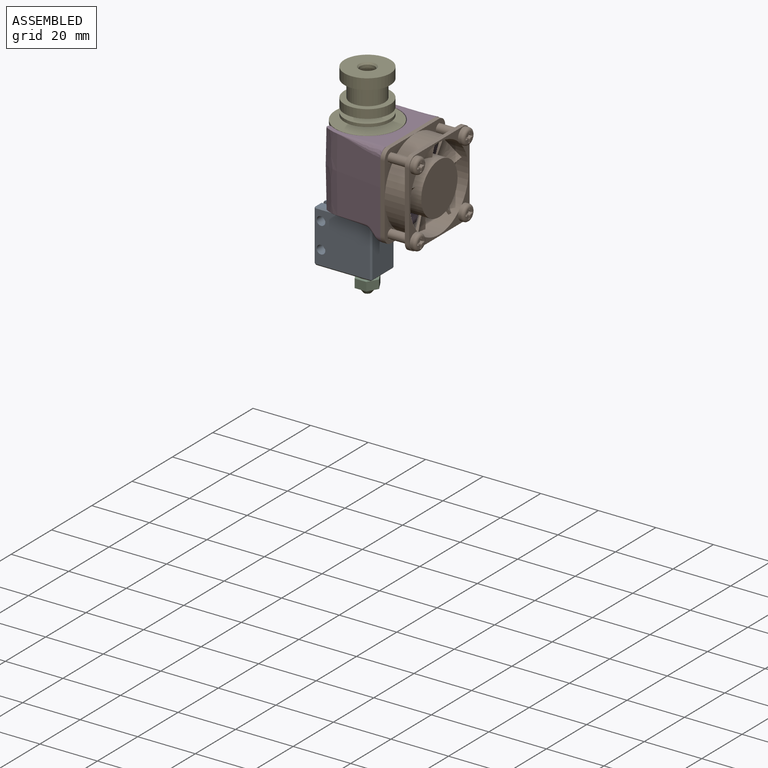
[diagram: assembled view]
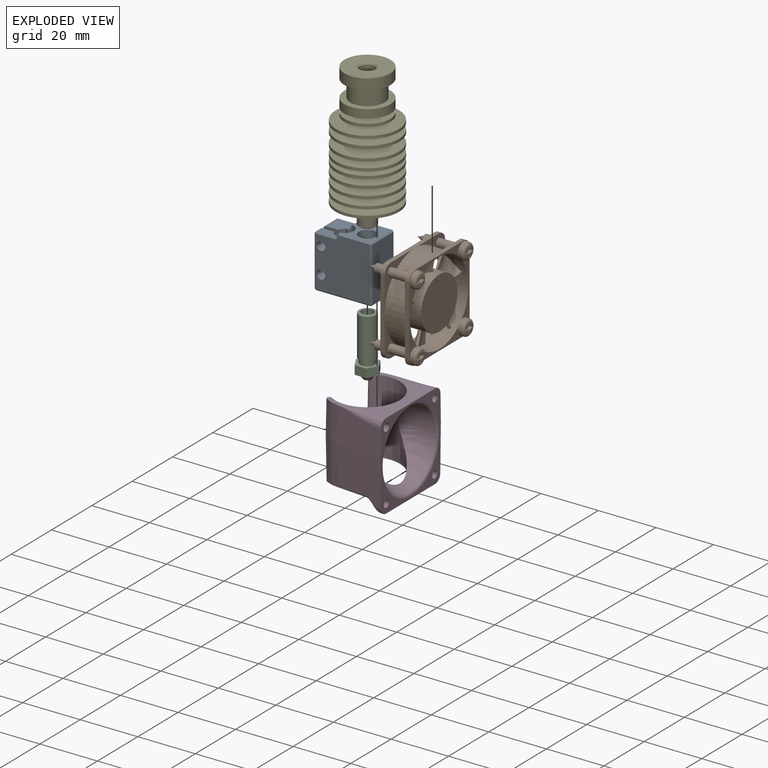
[diagram: exploded view]
GUIDED TOUR — MATED ASSEMBLY (Onshape document bf34e4418287bbaedd079997, AutoMate assembly bf34e4418287bbaedd079997_8dc63caf753efea9ff4d28b3_8edada6e39f5f6edcc6bcfe7_default)

This assembly has 5 components, labeled P0..P4 below (a component is one placed occurrence of a part; the same part can appear more than once), held together by 4 mates. A mate is a constraint between two components; its type names the relative motion it leaves free:
  FASTENED — locks the two components together rigidly (no relative motion).
Axis/direction vectors are unit vectors and 'through' points are millimeter coordinates, both in the assembly's world frame.

MATES
  1. FASTENED "Fastened 2": P2 <-> P4, direction (0.000, 0.000, 1.000) through (-22.17, 0.00, -9.91) mm
  2. FASTENED "Fastened 4": P1 <-> P3, direction (0.000, 0.000, 1.000) through (-7.17, 0.00, 23.32) mm
  3. FASTENED "Fastened 3": P4 <-> P3, direction (0.000, 0.000, 1.000) through (-22.17, 0.00, 23.22) mm
  4. FASTENED "Fastened 1": P0 <-> P4, direction (0.000, 0.000, 1.000) through (-22.17, 0.00, -4.91) mm

ASSEMBLY ORDER
  1. P4 — the base component [order heuristic]
  2. P0 [order heuristic]
  3. P2 [order heuristic]
  4. P3 [order heuristic]
  5. P1 [order heuristic]
Order-tag legend:
  [order heuristic] — this assembly is geometrically interlocked (no collision-free removal order exists), so components are listed in mate-graph order; insertion feasibility is not verified.

Of the 5 components, 3 carry the full construction recipe — the FeatureScript program that regenerates the part's solid from scratch; the rest are supplied as boundary geometry only.
Each toured component is shown spotlighted twice — in the assembled view, then in the exploded view, where a leader line traces a displaced component back to its assembled socket (saturated green if recipe-attached, orange if geometry-only; every other component desaturated gray) — followed by its recipe or geometry summary and the mates that hold it.
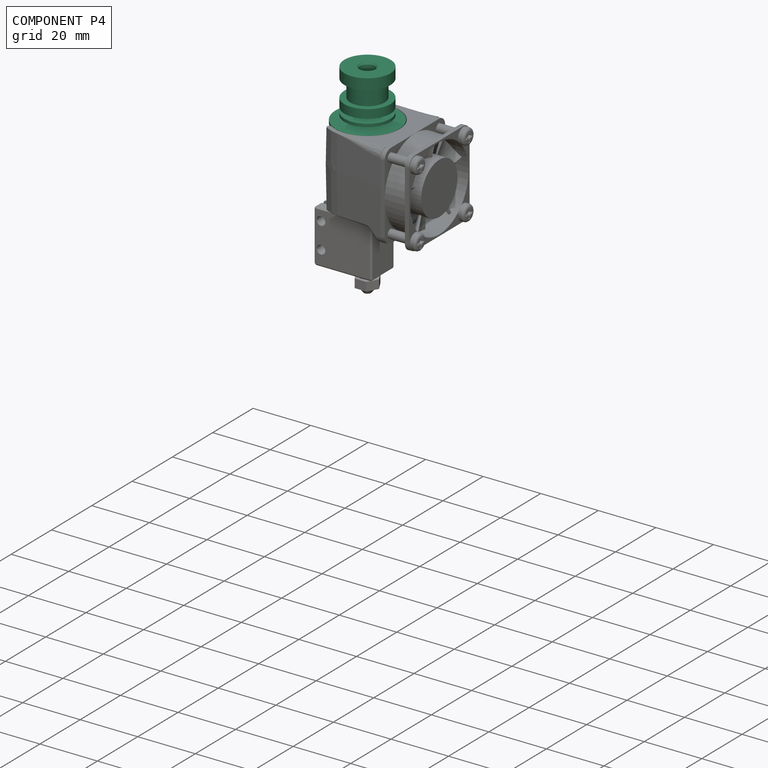
[diagram: component P4 — assembled]
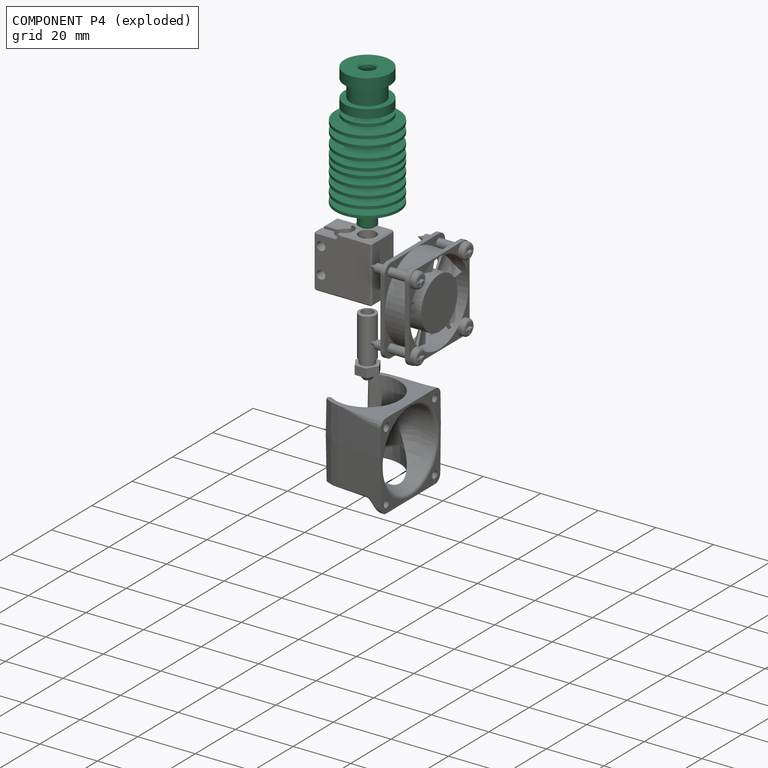
[diagram: component P4 — exploded]
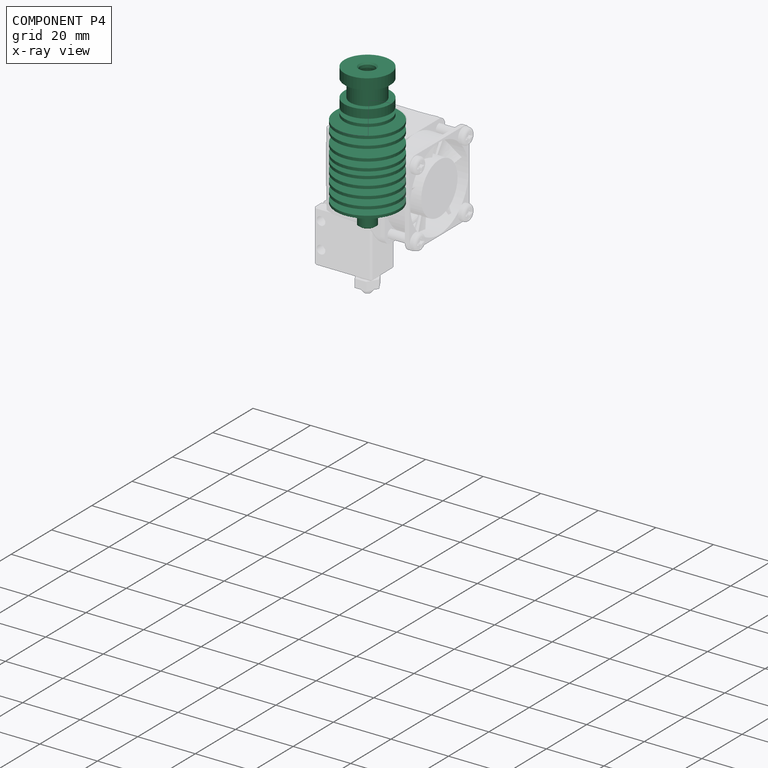
[diagram: component P4 — x-ray view]
COMPONENT P4 — recipe-attached (CADFS 00752190, mesh-verified: the recipe's output STEP matches this component's geometry to below the mesh-comparison resolution (tessellation chordal tolerance ~0.0881 mm)).
Held by: FASTENED mate "Fastened 2" to P2; FASTENED mate "Fastened 3" to P3; FASTENED mate "Fastened 1" to P0.
Construction recipe (FeatureScript — the CAD program that rebuilds this solid; sketch coordinates are in the units given by the * unit suffixes, e.g. mm):

FeatureScript 2656;
import(path : "onshape/std/geometry.fs", version : "2656.0");
import(path : "onshape/std/common.fs", version : "2656.0");
const mm = millimeter;
const VERTEX = EntityType.VERTEX;
const EDGE = EntityType.EDGE;
const FACE = EntityType.FACE;
const BODY = EntityType.BODY;
function v(x, y){return vector(x, y);}
function OD(order){return orderDisambiguation(order);}
function OSD(set){return originalSetDisambiguation(set);}
function TD(topology){return topologyDisambiguation(topology);}
function TDD(query){return trueDependencyDisambiguation(query);}
function sQuery(a, b, c) {return sketchEntityQuery(a, b, c);}

annotation { "Feature Type Name" : "Feature", "Feature Type Description" : "" }
export const myFeature = defineFeature(function(context is Context, id is Id, definition is map)
    precondition{}
    {
        {
            var Q0;
            Q0=qCreatedBy(makeId("Front.planeOp"),FACE);
            var sketch = newSketch(context, id + "F0", { "sketchPlane" : qUnion([Q0])});
            skLineSegment(sketch, "E0", {"start": v(0, 61.45) * mm, "end": v(0, -25.18) * mm, "construction": true});
            skPoint(sketch, "E1", {"position": v(0, 49.8) * mm});
            skPoint(sketch, "E2", {"position": v(0, 7.1) * mm});
            skLineSegment(sketch, "E3", {"start": v(0, 49.8) * mm, "end": v(8, 49.8) * mm});
            skLineSegment(sketch, "E4", {"start": v(8, 49.8) * mm, "end": v(8, 46.1) * mm});
            skLineSegment(sketch, "E5", {"start": v(8, 46.1) * mm, "end": v(6, 46.1) * mm});
            skLineSegment(sketch, "E6", {"start": v(6, 46.1) * mm, "end": v(6, 40.1) * mm});
            skLineSegment(sketch, "E7", {"start": v(6, 40.1) * mm, "end": v(8, 40.1) * mm});
            skLineSegment(sketch, "E8", {"start": v(8, 40.1) * mm, "end": v(8, 37.1) * mm});
            skLineSegment(sketch, "E9", {"start": v(8, 37.1) * mm, "end": v(4.5, 37.1) * mm});
            skLineSegment(sketch, "E10", {"start": v(4.5, 37.1) * mm, "end": v(4.5, 35.52) * mm});
            skLineSegment(sketch, "E11", {"start": v(4.5, 35.52) * mm, "end": v(8, 35.52) * mm});
            skLineSegment(sketch, "E12", {"start": v(8, 35.52) * mm, "end": v(8, 34.52) * mm});
            skLineSegment(sketch, "E13", {"start": v(8, 34.52) * mm, "end": v(4.5, 34.52) * mm});
            skLineSegment(sketch, "E14", {"start": v(4.5, 34.52) * mm, "end": v(4.5, 33.13) * mm});
            skLineSegment(sketch, "E15", {"start": v(4.5, 33.13) * mm, "end": v(11, 33.13) * mm});
            skLineSegment(sketch, "E16", {"start": v(11, 33.13) * mm, "end": v(11, 32.13) * mm});
            skLineSegment(sketch, "E17", {"start": v(11, 32.13) * mm, "end": v(3, 32.13) * mm});
            skLineSegment(sketch, "E18", {"start": v(3, 32.13) * mm, "end": v(3, 30.03) * mm});
            skLineSegment(sketch, "E19", {"start": v(3, 30.03) * mm, "end": v(11, 30.03) * mm});
            skLineSegment(sketch, "E20", {"start": v(11, 30.03) * mm, "end": v(11, 29.03) * mm});
            skLineSegment(sketch, "E21", {"start": v(11, 29.03) * mm, "end": v(3, 29.03) * mm});
            skLineSegment(sketch, "E22", {"start": v(3, 29.03) * mm, "end": v(3, 26.03) * mm});
            skLineSegment(sketch, "E23", {"start": v(3, 26.03) * mm, "end": v(11, 26.03) * mm});
            skLineSegment(sketch, "E24", {"start": v(11, 26.03) * mm, "end": v(11, 25.03) * mm});
            skLineSegment(sketch, "E25", {"start": v(11, 25.03) * mm, "end": v(3, 25.03) * mm});
            skLineSegment(sketch, "E26", {"start": v(3, 25.03) * mm, "end": v(3, 22.93) * mm});
            skLineSegment(sketch, "E27", {"start": v(3, 22.93) * mm, "end": v(11, 22.93) * mm});
            skLineSegment(sketch, "E28", {"start": v(11, 22.93) * mm, "end": v(11, 21.93) * mm});
            skLineSegment(sketch, "E29", {"start": v(11, 21.93) * mm, "end": v(6.5, 21.93) * mm});
            skLineSegment(sketch, "E30", {"start": v(6.5, 21.93) * mm, "end": v(6.5, 20.53) * mm});
            skLineSegment(sketch, "E31", {"start": v(6.5, 20.53) * mm, "end": v(11, 20.53) * mm});
            skLineSegment(sketch, "E32", {"start": v(11, 20.53) * mm, "end": v(11, 19.53) * mm});
            skLineSegment(sketch, "E33", {"start": v(11, 19.53) * mm, "end": v(3, 19.53) * mm});
            skLineSegment(sketch, "E34", {"start": v(3, 19.53) * mm, "end": v(3, 17.43) * mm});
            skLineSegment(sketch, "E35", {"start": v(3, 17.43) * mm, "end": v(11.01, 17.43) * mm});
            skLineSegment(sketch, "E36", {"start": v(11.01, 17.43) * mm, "end": v(11.01, 16.43) * mm});
            skLineSegment(sketch, "E37", {"start": v(11.01, 16.43) * mm, "end": v(3, 16.43) * mm});
            skLineSegment(sketch, "E38", {"start": v(3, 16.43) * mm, "end": v(3, 14.23) * mm});
            skLineSegment(sketch, "E39", {"start": v(3, 14.23) * mm, "end": v(11.01, 14.23) * mm});
            skLineSegment(sketch, "E40", {"start": v(11.01, 14.23) * mm, "end": v(11.01, 13.23) * mm});
            skLineSegment(sketch, "E41", {"start": v(11.01, 13.23) * mm, "end": v(3, 13.23) * mm});
            skLineSegment(sketch, "E42", {"start": v(3, 13.23) * mm, "end": v(3, 11.03) * mm});
            skLineSegment(sketch, "E43", {"start": v(3, 11.03) * mm, "end": v(11.01, 11.03) * mm});
            skLineSegment(sketch, "E44", {"start": v(11.01, 11.03) * mm, "end": v(11.01, 10.03) * mm});
            skLineSegment(sketch, "E45", {"start": v(11.01, 10.03) * mm, "end": v(3, 10.03) * mm});
            skLineSegment(sketch, "E46", {"start": v(3, 10.03) * mm, "end": v(3, 8.03) * mm});
            skLineSegment(sketch, "E47", {"start": v(3, 8.03) * mm, "end": v(11.01, 8.03) * mm});
            skLineSegment(sketch, "E48", {"start": v(11.01, 8.03) * mm, "end": v(11.01, 7.1) * mm});
            skLineSegment(sketch, "E49", {"start": v(2.48, 7.1) * mm, "end": v(11.01, 7.1) * mm});
            skLineSegment(sketch, "E50", {"start": v(0, 49.8) * mm, "end": v(0, 7.1) * mm});
            skPoint(sketch, "E51", {"position": v(2.2, 7.1) * mm});
            skLineSegment(sketch, "E52", {"start": v(2.2, 7.1) * mm, "end": v(2.2, 0) * mm});
            skLineSegment(sketch, "E53", {"start": v(2.2, 7.1) * mm, "end": v(2.2, 39.24) * mm});
            skLineSegment(sketch, "E54", {"start": v(2.2, 39.24) * mm, "end": v(3.69, 41.9) * mm});
            skLineSegment(sketch, "E55", {"start": v(3.69, 41.9) * mm, "end": v(3.69, 45.97) * mm});
            skLineSegment(sketch, "E56", {"start": v(3.69, 45.97) * mm, "end": v(2.56, 48.21) * mm});
            skLineSegment(sketch, "E57", {"start": v(2.56, 48.21) * mm, "end": v(2.56, 49.21) * mm});
            skLineSegment(sketch, "E58", {"start": v(2.56, 49.21) * mm, "end": v(3, 49.8) * mm});
            skLineSegment(sketch, "E59", {"start": v(2.48, 7.1) * mm, "end": v(2.48, 5) * mm});
            skLineSegment(sketch, "E60", {"start": v(2.48, 5) * mm, "end": v(3.05, 4.67) * mm});
            skLineSegment(sketch, "E61", {"start": v(3.05, 4.67) * mm, "end": v(3.05, 0.4) * mm});
            skLineSegment(sketch, "E62", {"start": v(3.05, 0.4) * mm, "end": v(2.48, 0) * mm});
            skLineSegment(sketch, "E63", {"start": v(2.48, 0) * mm, "end": v(2.2, 0) * mm});
            skPoint(sketch, "E64", {"position": v(0, 0) * mm});
            skSolve(sketch);
        }
        {
            var Q0;
            {var subQ1=sQuery(id+"F0.wireOp",EDGE,"E4");Q0=makeQuery(id+"F0.imprint","IMPRINT",FACE,{"disambiguationData":[TD([[makeQuery(id+"F0.imprint","IMPRINT",EDGE,{"derivedFrom":subQ1}),-1.0]])]});}
            var Q1;
            Q1=sQuery(id+"F0.wireOp",EDGE,"E0");
            revolve(context, id + "F1", {"surfaceOperationType" : NewSurfaceOperationType.NEW, "entities" : qUnion([Q0]), "axis" : qUnion([Q1]), "revolveType" : RevolveType.FULL});
        }
    });
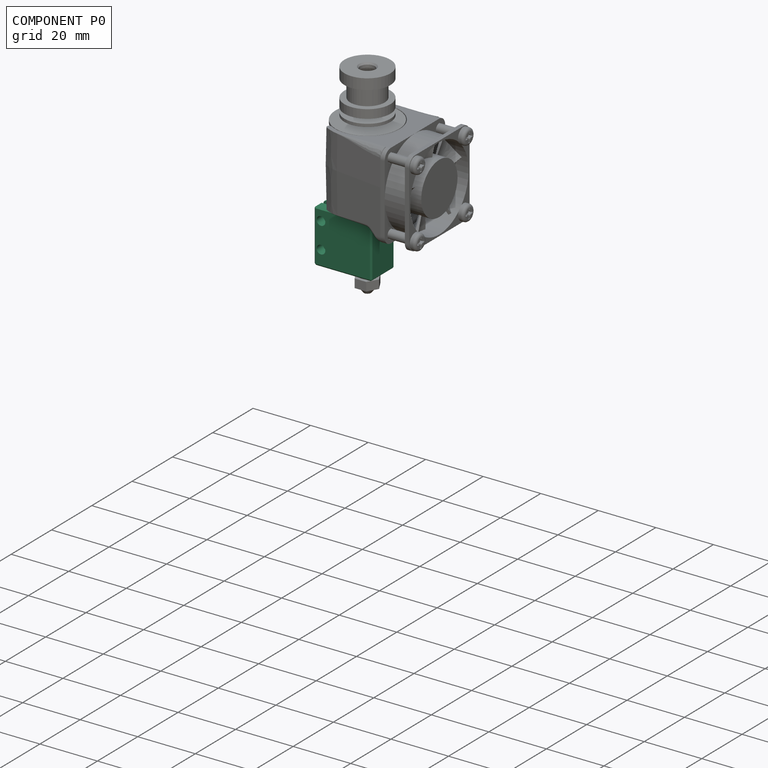
[diagram: component P0 — assembled]
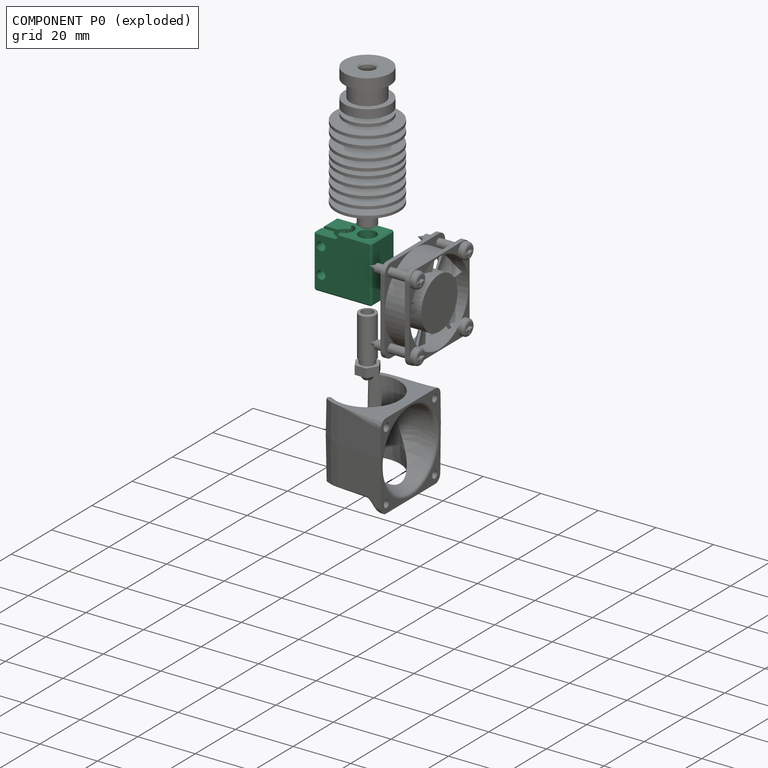
[diagram: component P0 — exploded]
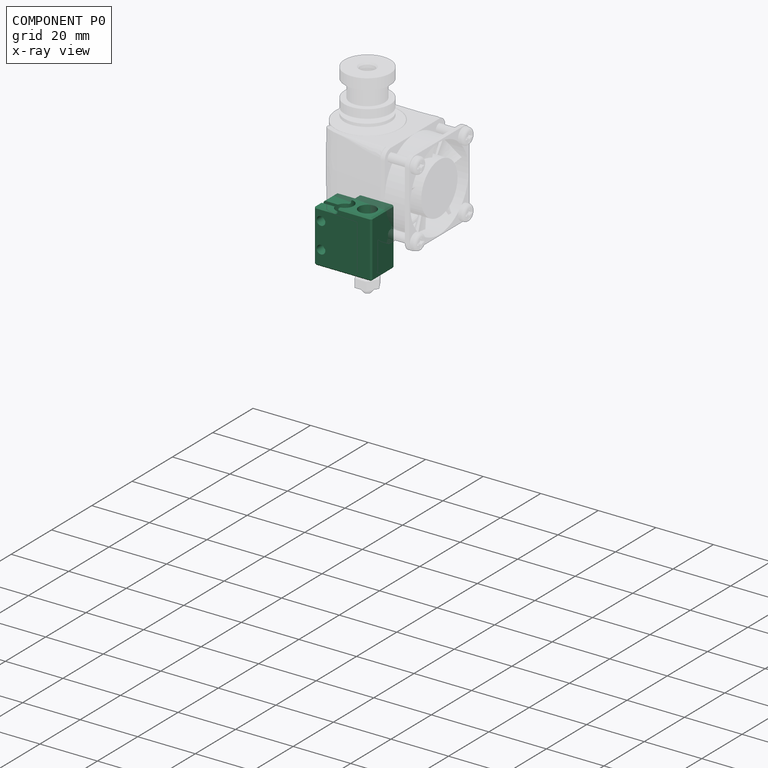
[diagram: component P0 — x-ray view]
COMPONENT P0 — recipe-attached (CADFS 00752191, mesh-verified: the recipe's output STEP matches this component's geometry to below the mesh-comparison resolution (tessellation chordal tolerance ~0.0458 mm)).
Held by: FASTENED mate "Fastened 1" to P4.
Construction recipe (FeatureScript — the CAD program that rebuilds this solid; sketch coordinates are in the units given by the * unit suffixes, e.g. mm):

FeatureScript 2656;
import(path : "onshape/std/geometry.fs", version : "2656.0");
import(path : "onshape/std/common.fs", version : "2656.0");
const mm = millimeter;
const VERTEX = EntityType.VERTEX;
const EDGE = EntityType.EDGE;
const FACE = EntityType.FACE;
const BODY = EntityType.BODY;
function v(x, y){return vector(x, y);}
function OD(order){return orderDisambiguation(order);}
function OSD(set){return originalSetDisambiguation(set);}
function TD(topology){return topologyDisambiguation(topology);}
function TDD(query){return trueDependencyDisambiguation(query);}
function sQuery(a, b, c) {return sketchEntityQuery(a, b, c);}

annotation { "Feature Type Name" : "Feature", "Feature Type Description" : "" }
export const myFeature = defineFeature(function(context is Context, id is Id, definition is map)
    precondition{}
    {
        {
            var Q0;
            Q0=qCreatedBy(makeId("Front.planeOp"),FACE);
            var sketch = newSketch(context, id + "F0", { "sketchPlane" : qUnion([Q0])});
            skLineSegment(sketch, "E0.bottom", {"start": v(4.5, -20) * mm, "end": v(-6.8, -20) * mm});
            skLineSegment(sketch, "E0.top", {"start": v(4.5, 0) * mm, "end": v(-15.5, 0) * mm});
            skLineSegment(sketch, "E0.left", {"start": v(4.5, -20) * mm, "end": v(4.5, 0) * mm});
            skLineSegment(sketch, "E0.right", {"start": v(-15.5, -18.5) * mm, "end": v(-15.5, 0) * mm});
            skLineSegment(sketch, "E1", {"start": v(-15.5, -18.5) * mm, "end": v(-8.3, -18.5) * mm});
            skLineSegment(sketch, "E2", {"start": v(-7.5, 0.7) * mm, "end": v(-7.5, 0.7) * mm});
            skPoint(sketch, "E3", {"position": v(-13, -14.5) * mm});
            skPoint(sketch, "E4", {"position": v(-13, -5.5) * mm});
            skPoint(sketch, "E5", {"position": v(-4, -4.5) * mm});
            skPoint(sketch, "E6", {"position": v(-4, -8) * mm});
            skPoint(sketch, "E7.visualSharp", {"position": v(-7.5, -18.5) * mm});
            skArc(sketch, "E7.filletArc", {"start": v(-7.5, -19.3) * mm, "mid": v(-7.73, -18.73) * mm, "end": v(-8.3, -18.5) * mm});
            skLineSegment(sketch, "E8", {"start": v(0, -47.98) * mm, "end": v(0, 21.9) * mm, "construction": true});
            skPoint(sketch, "E9", {"position": v(0, -20) * mm});
            skCircle(sketch, "E10", {"center": v(-4, -8) * mm, "radius": 1.2 * mm});
            skCircle(sketch, "E11", {"center": v(-4, -8) * mm, "radius": 1.5 * mm});
            skCircle(sketch, "E12", {"center": v(-4, -4.5) * mm, "radius": 1 * mm});
            skPoint(sketch, "E13.visualSharp", {"position": v(-7.5, -20) * mm});
            skArc(sketch, "E13.filletArc", {"start": v(-7.5, -19.3) * mm, "mid": v(-7.3, -19.8) * mm, "end": v(-6.8, -20) * mm});
            skCircle(sketch, "E14", {"center": v(-13, -5.5) * mm, "radius": 1.2 * mm});
            skCircle(sketch, "E15", {"center": v(-13, -5.5) * mm, "radius": 1.5 * mm});
            skCircle(sketch, "E16", {"center": v(-13, -14.5) * mm, "radius": 1.2 * mm});
            skCircle(sketch, "E17", {"center": v(-13, -14.5) * mm, "radius": 1.5 * mm});
            skPoint(sketch, "E18", {"position": v(0, 0) * mm});
            skPoint(sketch, "E19", {"position": v(159.93, -108.2) * mm});
            skSolve(sketch);
        }
        {
            var Q0;
            Q0=makeQuery(id+"F0.imprint","IMPRINT",FACE,{"disambiguationData":[TD([[makeQuery(id+"F0.imprint","IMPRINT",EDGE,{"derivedFrom":sQuery(id+"F0.wireOp",EDGE,"E0.bottom")}),-1.0]])]});
            var Q1;
            Q1=makeQuery(id+"F0.imprint","IMPRINT",FACE,{"disambiguationData":[TD([[makeQuery(id+"F0.imprint","IMPRINT",EDGE,{"derivedFrom":sQuery(id+"F0.wireOp",EDGE,"E10")}),1.0]])]});
            var Q2;
            Q2=makeQuery(id+"F0.imprint","IMPRINT",FACE,{"disambiguationData":[TD([[makeQuery(id+"F0.imprint","IMPRINT",EDGE,{"derivedFrom":sQuery(id+"F0.wireOp",EDGE,"E10")}),-1.0]])]});
            var Q3;
            Q3=makeQuery(id+"F0.imprint","IMPRINT",FACE,{"disambiguationData":[TD([[makeQuery(id+"F0.imprint","IMPRINT",EDGE,{"derivedFrom":sQuery(id+"F0.wireOp",EDGE,"E12")}),1.0]])]});
            var Q4;
            Q4=makeQuery(id+"F0.imprint","IMPRINT",FACE,{"disambiguationData":[TD([[makeQuery(id+"F0.imprint","IMPRINT",EDGE,{"derivedFrom":sQuery(id+"F0.wireOp",EDGE,"E14")}),-1.0]])]});
            var Q5;
            Q5=makeQuery(id+"F0.imprint","IMPRINT",FACE,{"disambiguationData":[TD([[makeQuery(id+"F0.imprint","IMPRINT",EDGE,{"derivedFrom":sQuery(id+"F0.wireOp",EDGE,"E14")}),1.0]])]});
            var Q6;
            Q6=makeQuery(id+"F0.imprint","IMPRINT",FACE,{"disambiguationData":[TD([[makeQuery(id+"F0.imprint","IMPRINT",EDGE,{"derivedFrom":sQuery(id+"F0.wireOp",EDGE,"E16")}),-1.0]])]});
            var Q7;
            Q7=makeQuery(id+"F0.imprint","IMPRINT",FACE,{"disambiguationData":[TD([[makeQuery(id+"F0.imprint","IMPRINT",EDGE,{"derivedFrom":sQuery(id+"F0.wireOp",EDGE,"E16")}),1.0]])]});
            extrude(context, id + "F1", {"entities" : qUnion([Q0, Q1, Q2, Q3, Q4, Q5, Q6, Q7]), "depth" : 11.5 * mm, "offsetDistance" : 25 * mm});
        }
        {
            var Q0;
            Q0=qCreatedBy(makeId("Top.planeOp"),FACE);
            var sketch = newSketch(context, id + "F2", { "sketchPlane" : qUnion([Q0])});
            skLineSegment(sketch, "E20.bottom", {"start": v(-15.5, 0) * mm, "end": v(4.5, 0) * mm});
            skLineSegment(sketch, "E20.top", {"start": v(-15.5, -11.5) * mm, "end": v(4.5, -11.5) * mm});
            skLineSegment(sketch, "E20.left", {"start": v(-15.5, 0) * mm, "end": v(-15.5, -6.7) * mm});
            skLineSegment(sketch, "E20.right", {"start": v(4.5, 0) * mm, "end": v(4.5, -11.5) * mm});
            skLineSegment(sketch, "E21.0", {"start": v(-15.5, 4.8) * mm, "end": v(-15.5, -11.5) * mm, "construction": true});
            skLineSegment(sketch, "E22.0", {"start": v(4.5, 0) * mm, "end": v(-15.5, 0) * mm, "construction": true});
            skLineSegment(sketch, "E23.0", {"start": v(4.5, 0) * mm, "end": v(4.5, -11.5) * mm, "construction": true});
            skLineSegment(sketch, "E24.0", {"start": v(-15.5, -11.5) * mm, "end": v(4.5, -11.5) * mm, "construction": true});
            skPoint(sketch, "E25", {"position": v(-15.5, -11.5) * mm});
            skPoint(sketch, "E26", {"position": v(-7.5, -7.5) * mm});
            skPoint(sketch, "E27", {"position": v(0, -7) * mm});
            skPoint(sketch, "E28", {"position": v(-15.5, -8.3) * mm});
            skPoint(sketch, "E29", {"position": v(-15.5, -6.7) * mm});
            skArc(sketch, "E30", {"start": v(-10.44, -8.3) * mm, "mid": v(-4.45, -7.5) * mm, "end": v(-10.44, -6.7) * mm});
            skCircle(sketch, "E31", {"center": v(0, -7) * mm, "radius": 2.4 * mm});
            skCircle(sketch, "E32", {"center": v(0, -7) * mm, "radius": 3 * mm});
            skLineSegment(sketch, "E33", {"start": v(-15.5, -6.7) * mm, "end": v(-10.44, -6.7) * mm});
            skLineSegment(sketch, "E34", {"start": v(-15.5, -8.3) * mm, "end": v(-10.44, -8.3) * mm});
            skLineSegment(sketch, "E35.trimOffspring", {"start": v(-15.5, -8.3) * mm, "end": v(-15.5, -11.5) * mm, "construction": true});
            skLineSegment(sketch, "E36.trimOffspring", {"start": v(-15.5, -8.3) * mm, "end": v(-15.5, -11.5) * mm});
            skLineSegment(sketch, "E37", {"start": v(-15.5, -8.3) * mm, "end": v(-15.5, -6.7) * mm});
            skSolve(sketch);
        }
        {
            var Q0;
            Q0=makeQuery(id+"F2.imprint","IMPRINT",FACE,{"disambiguationData":[TD([[makeQuery(id+"F2.imprint","IMPRINT",EDGE,{"derivedFrom":sQuery(id+"F2.wireOp",EDGE,"E30")}),1.0]])]});
            var Q1;
            Q1=makeQuery(id+"F2.imprint","IMPRINT",FACE,{"disambiguationData":[TD([[makeQuery(id+"F2.imprint","IMPRINT",EDGE,{"derivedFrom":sQuery(id+"F2.wireOp",EDGE,"E31")}),1.0]])]});
            var Q2;
            Q2=makeQuery(id+"F2.imprint","IMPRINT",FACE,{"disambiguationData":[TD([[makeQuery(id+"F2.imprint","IMPRINT",EDGE,{"derivedFrom":sQuery(id+"F2.wireOp",EDGE,"E31")}),-1.0]])]});
            extrude(context, id + "F3", {"entities" : qUnion([Q0, Q1, Q2]), "operationType" : NewBodyOperationType.REMOVE, "oppositeDirection" : true, "depth" : 25 * mm, "offsetDistance" : 25 * mm});
        }
        {
            var Q0;
            Q0=makeQuery(id+"F0.imprint","IMPRINT",FACE,{"disambiguationData":[TD([[makeQuery(id+"F0.imprint","IMPRINT",EDGE,{"derivedFrom":sQuery(id+"F0.wireOp",EDGE,"E14")}),1.0]])]});
            var Q1;
            Q1=makeQuery(id+"F0.imprint","IMPRINT",FACE,{"disambiguationData":[TD([[makeQuery(id+"F0.imprint","IMPRINT",EDGE,{"derivedFrom":sQuery(id+"F0.wireOp",EDGE,"E16")}),1.0]])]});
            var Q2;
            Q2=makeQuery(id+"F0.imprint","IMPRINT",FACE,{"disambiguationData":[TD([[makeQuery(id+"F0.imprint","IMPRINT",EDGE,{"derivedFrom":sQuery(id+"F0.wireOp",EDGE,"E14")}),-1.0]])]});
            var Q3;
            Q3=makeQuery(id+"F0.imprint","IMPRINT",FACE,{"disambiguationData":[TD([[makeQuery(id+"F0.imprint","IMPRINT",EDGE,{"derivedFrom":sQuery(id+"F0.wireOp",EDGE,"E16")}),-1.0]])]});
            extrude(context, id + "F4", {"entities" : qUnion([Q0, Q1, Q2, Q3]), "operationType" : NewBodyOperationType.REMOVE, "depth" : 25 * mm, "offsetDistance" : 25 * mm});
        }
        {
            var Q0;
            Q0=makeQuery(id+"F0.imprint","IMPRINT",FACE,{"disambiguationData":[TD([[makeQuery(id+"F0.imprint","IMPRINT",EDGE,{"derivedFrom":sQuery(id+"F0.wireOp",EDGE,"E10")}),-1.0]])]});
            var Q1;
            Q1=makeQuery(id+"F0.imprint","IMPRINT",FACE,{"disambiguationData":[TD([[makeQuery(id+"F0.imprint","IMPRINT",EDGE,{"derivedFrom":sQuery(id+"F0.wireOp",EDGE,"E10")}),1.0]])]});
            extrude(context, id + "F5", {"entities" : qUnion([Q0, Q1]), "operationType" : NewBodyOperationType.REMOVE, "depth" : 3.5 * mm, "offsetDistance" : 25 * mm});
        }
        {
            var Q0;
            Q0=makeQuery(id+"F0.imprint","IMPRINT",FACE,{"disambiguationData":[TD([[makeQuery(id+"F0.imprint","IMPRINT",EDGE,{"derivedFrom":sQuery(id+"F0.wireOp",EDGE,"E12")}),1.0]])]});
            extrude(context, id + "F6", {"entities" : qUnion([Q0]), "operationType" : NewBodyOperationType.REMOVE, "depth" : 2 * mm, "offsetDistance" : 25 * mm});
        }
        {
            var Q0;
            Q0=makeQuery(id+"F1.opExtrude","SWEPT_EDGE",EDGE,{"disambiguationData":[OSD([sQuery(id+"F0.wireOp",EDGE,"E0.top"),sQuery(id+"F0.wireOp",EDGE,"E0.left")])]});
            var Q1;
            Q1=makeQuery(id+"F1.opExtrude","CAP_EDGE",EDGE,{"disambiguationData":[OSD([sQuery(id+"F0.wireOp",EDGE,"E0.top")])],"isStart":false});
            var Q2;
            {var subQ0=sQuery(id+"F0.wireOp",EDGE,"E0.right");var subQ1=sQuery(id+"F0.wireOp",EDGE,"E0.top");Q2=makeQuery(id+"F3.boolean.opBoolean","SPLIT",EDGE,{"disambiguationData":[TD([makeQuery(id+"F3.opExtrude","SWEPT_FACE",FACE,{"disambiguationData":[OSD([sQuery(id+"F2.wireOp",EDGE,"E34")])]})])],"derivedFrom":makeQuery(id+"F1.opExtrude","SWEPT_EDGE",EDGE,{"disambiguationData":[OSD([subQ1,subQ0])]})});}
            var Q3;
            {var subQ0=sQuery(id+"F0.wireOp",EDGE,"E0.right");var subQ1=sQuery(id+"F0.wireOp",EDGE,"E0.top");Q3=makeQuery(id+"F3.boolean.opBoolean","SPLIT",EDGE,{"disambiguationData":[TD([makeQuery(id+"F3.opExtrude","SWEPT_FACE",FACE,{"disambiguationData":[OSD([sQuery(id+"F2.wireOp",EDGE,"E33")])]})])],"derivedFrom":makeQuery(id+"F1.opExtrude","SWEPT_EDGE",EDGE,{"disambiguationData":[OSD([subQ1,subQ0])]})});}
            var Q4;
            Q4=makeQuery(id+"F1.opExtrude","CAP_EDGE",EDGE,{"disambiguationData":[OSD([sQuery(id+"F0.wireOp",EDGE,"E0.top")])],"isStart":true});
            var Q5;
            Q5=makeQuery(id+"F1.opExtrude","CAP_EDGE",EDGE,{"disambiguationData":[OSD([sQuery(id+"F0.wireOp",EDGE,"E0.left")])],"isStart":false});
            var Q6;
            Q6=makeQuery(id+"F1.opExtrude","CAP_EDGE",EDGE,{"disambiguationData":[OSD([sQuery(id+"F0.wireOp",EDGE,"E0.right")])],"isStart":false});
            var Q7;
            Q7=makeQuery(id+"F1.opExtrude","CAP_EDGE",EDGE,{"disambiguationData":[OSD([sQuery(id+"F0.wireOp",EDGE,"E1")])],"isStart":false});
            var Q8;
            Q8=makeQuery(id+"F1.opExtrude","CAP_EDGE",EDGE,{"disambiguationData":[OSD([sQuery(id+"F0.wireOp",EDGE,"E7.filletArc")])],"isStart":false});
            var Q9;
            Q9=makeQuery(id+"F1.opExtrude","CAP_EDGE",EDGE,{"disambiguationData":[OSD([sQuery(id+"F0.wireOp",EDGE,"E13.filletArc")])],"isStart":false});
            var Q10;
            Q10=makeQuery(id+"F1.opExtrude","CAP_EDGE",EDGE,{"disambiguationData":[OSD([sQuery(id+"F0.wireOp",EDGE,"E0.bottom")])],"isStart":false});
            var Q11;
            Q11=makeQuery(id+"F1.opExtrude","SWEPT_EDGE",EDGE,{"disambiguationData":[OSD([sQuery(id+"F0.wireOp",EDGE,"E0.bottom"),sQuery(id+"F0.wireOp",EDGE,"E0.left")])]});
            var Q12;
            {var subQ0=sQuery(id+"F0.wireOp",EDGE,"E1");var subQ1=sQuery(id+"F0.wireOp",EDGE,"E0.right");Q12=makeQuery(id+"F3.boolean.opBoolean","SPLIT",EDGE,{"disambiguationData":[TD([makeQuery(id+"F3.opExtrude","SWEPT_FACE",FACE,{"disambiguationData":[OSD([sQuery(id+"F2.wireOp",EDGE,"E34")])]})])],"derivedFrom":makeQuery(id+"F1.opExtrude","SWEPT_EDGE",EDGE,{"disambiguationData":[OSD([subQ1,subQ0])]})});}
            var Q13;
            {var subQ0=sQuery(id+"F0.wireOp",EDGE,"E1");var subQ1=sQuery(id+"F0.wireOp",EDGE,"E0.right");Q13=makeQuery(id+"F3.boolean.opBoolean","SPLIT",EDGE,{"disambiguationData":[TD([makeQuery(id+"F3.opExtrude","SWEPT_FACE",FACE,{"disambiguationData":[OSD([sQuery(id+"F2.wireOp",EDGE,"E33")])]})])],"derivedFrom":makeQuery(id+"F1.opExtrude","SWEPT_EDGE",EDGE,{"disambiguationData":[OSD([subQ1,subQ0])]})});}
            var Q14;
            Q14=makeQuery(id+"F1.opExtrude","CAP_EDGE",EDGE,{"disambiguationData":[OSD([sQuery(id+"F0.wireOp",EDGE,"E0.left")])],"isStart":true});
            var Q15;
            Q15=makeQuery(id+"F1.opExtrude","CAP_EDGE",EDGE,{"disambiguationData":[OSD([sQuery(id+"F0.wireOp",EDGE,"E0.bottom")])],"isStart":true});
            var Q16;
            Q16=makeQuery(id+"F1.opExtrude","CAP_EDGE",EDGE,{"disambiguationData":[OSD([sQuery(id+"F0.wireOp",EDGE,"E13.filletArc")])],"isStart":true});
            var Q17;
            Q17=makeQuery(id+"F1.opExtrude","CAP_EDGE",EDGE,{"disambiguationData":[OSD([sQuery(id+"F0.wireOp",EDGE,"E7.filletArc")])],"isStart":true});
            var Q18;
            Q18=makeQuery(id+"F1.opExtrude","CAP_EDGE",EDGE,{"disambiguationData":[OSD([sQuery(id+"F0.wireOp",EDGE,"E1")])],"isStart":true});
            var Q19;
            Q19=makeQuery(id+"F1.opExtrude","CAP_EDGE",EDGE,{"disambiguationData":[OSD([sQuery(id+"F0.wireOp",EDGE,"E0.right")])],"isStart":true});
            chamfer(context, id + "F7", {"entities" : qUnion([Q0, Q1, Q2, Q3, Q4, Q5, Q6, Q7, Q8, Q9, Q10, Q11, Q12, Q13, Q14, Q15, Q16, Q17, Q18, Q19]), "width" : 0.5 * mm, "tangentPropagation" : true});
        }
        {
            var Q0;
            Q0=makeQuery(id+"F1.opExtrude","SWEPT_BODY",BODY,{"disambiguationData":[OSD([sQuery(id+"F0.wireOp",EDGE,"E0.bottom"),sQuery(id+"F0.wireOp",EDGE,"E0.top"),sQuery(id+"F0.wireOp",EDGE,"E0.left"),sQuery(id+"F0.wireOp",EDGE,"E0.right"),sQuery(id+"F0.wireOp",EDGE,"E1"),sQuery(id+"F0.wireOp",EDGE,"E7.filletArc"),sQuery(id+"F0.wireOp",EDGE,"E13.filletArc")])]});
            var Q1;
            Q1=qCreatedBy(makeId("Front.planeOp"),FACE);
            mirror(context, id + "F8", {"entities" : qUnion([Q0]), "mirrorPlane" : qUnion([Q1])});
        }
        {
            var Q0;
            Q0=makeQuery(id+"F1.opExtrude","SWEPT_BODY",BODY,{"disambiguationData":[OSD([sQuery(id+"F0.wireOp",EDGE,"E0.bottom"),sQuery(id+"F0.wireOp",EDGE,"E0.top"),sQuery(id+"F0.wireOp",EDGE,"E0.left"),sQuery(id+"F0.wireOp",EDGE,"E0.right"),sQuery(id+"F0.wireOp",EDGE,"E1"),sQuery(id+"F0.wireOp",EDGE,"E7.filletArc"),sQuery(id+"F0.wireOp",EDGE,"E13.filletArc")])]});
            deleteBodies(context, id + "F9", {"entities" : qUnion([Q0])});
        }
        {
            var Q0;
            Q0=makeQuery(id+"F8.opPattern","COPY",BODY,{"derivedFrom":makeQuery(id+"F1.opExtrude","SWEPT_BODY",BODY,{"disambiguationData":[OSD([sQuery(id+"F0.wireOp",EDGE,"E0.bottom"),sQuery(id+"F0.wireOp",EDGE,"E0.top"),sQuery(id+"F0.wireOp",EDGE,"E0.left"),sQuery(id+"F0.wireOp",EDGE,"E0.right"),sQuery(id+"F0.wireOp",EDGE,"E1"),sQuery(id+"F0.wireOp",EDGE,"E7.filletArc"),sQuery(id+"F0.wireOp",EDGE,"E13.filletArc")])]}),"instanceName":"1"});
            var Q1;
            {var subQ0=sQuery(id+"F0.wireOp",EDGE,"E0.top");Q1=makeQuery(id+"F8.opPattern","COPY",EDGE,{"derivedFrom":makeQuery(id+"F7.opChamfer","BLEND_EDGE",EDGE,{"blendedFrom":[makeQuery(id+"F1.opExtrude","CAP_EDGE",EDGE,{"disambiguationData":[OSD([subQ0])],"isStart":true}),makeQuery(id+"F1.opExtrude","CAP_FACE",FACE,{"disambiguationData":[OSD([sQuery(id+"F0.wireOp",EDGE,"E0.bottom"),subQ0,sQuery(id+"F0.wireOp",EDGE,"E0.left"),sQuery(id+"F0.wireOp",EDGE,"E0.right"),sQuery(id+"F0.wireOp",EDGE,"E1"),sQuery(id+"F0.wireOp",EDGE,"E7.filletArc"),sQuery(id+"F0.wireOp",EDGE,"E13.filletArc")])],"isStart":true})],"blendedInto":[makeQuery(id+"F1.opExtrude","CAP_FACE",FACE,{"disambiguationData":[OSD([sQuery(id+"F0.wireOp",EDGE,"E0.bottom"),subQ0,sQuery(id+"F0.wireOp",EDGE,"E0.left"),sQuery(id+"F0.wireOp",EDGE,"E0.right"),sQuery(id+"F0.wireOp",EDGE,"E1"),sQuery(id+"F0.wireOp",EDGE,"E7.filletArc"),sQuery(id+"F0.wireOp",EDGE,"E13.filletArc")])],"isStart":true})]}),"instanceName":"1"});}
            transform(context, id + "F10", {"entities" : qUnion([Q0]), "transformType" : TransformType.ROTATION, "transformAxis" : qUnion([Q1]), "angle" : 180 * degree, "makeCopy" : false});
        }
    });
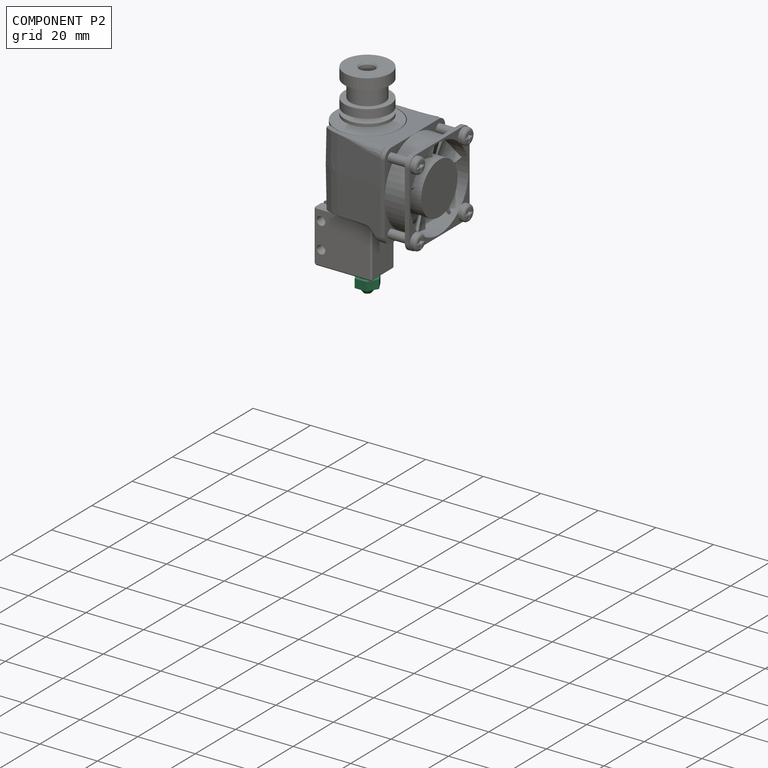
[diagram: component P2 — assembled]
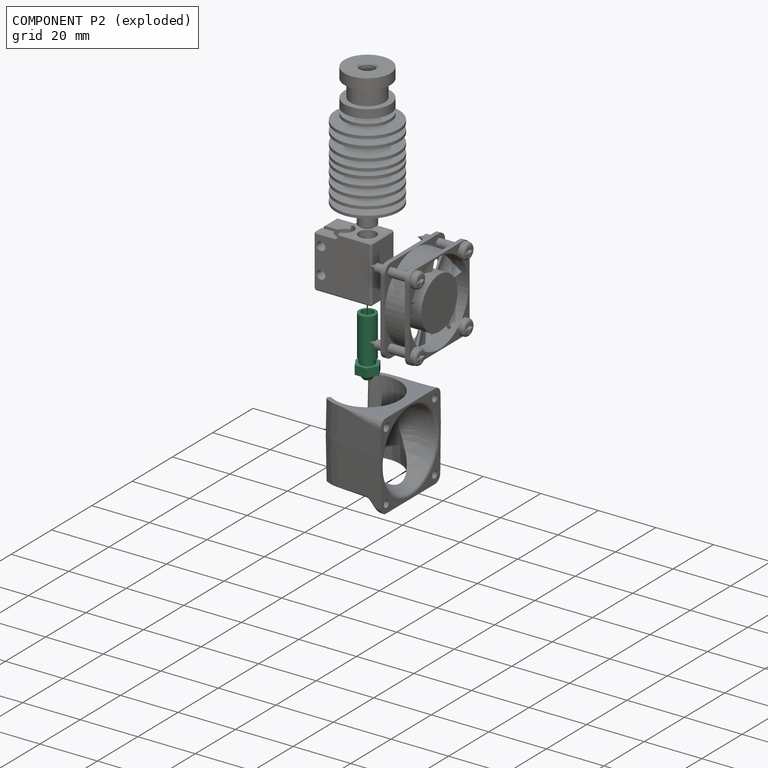
[diagram: component P2 — exploded]
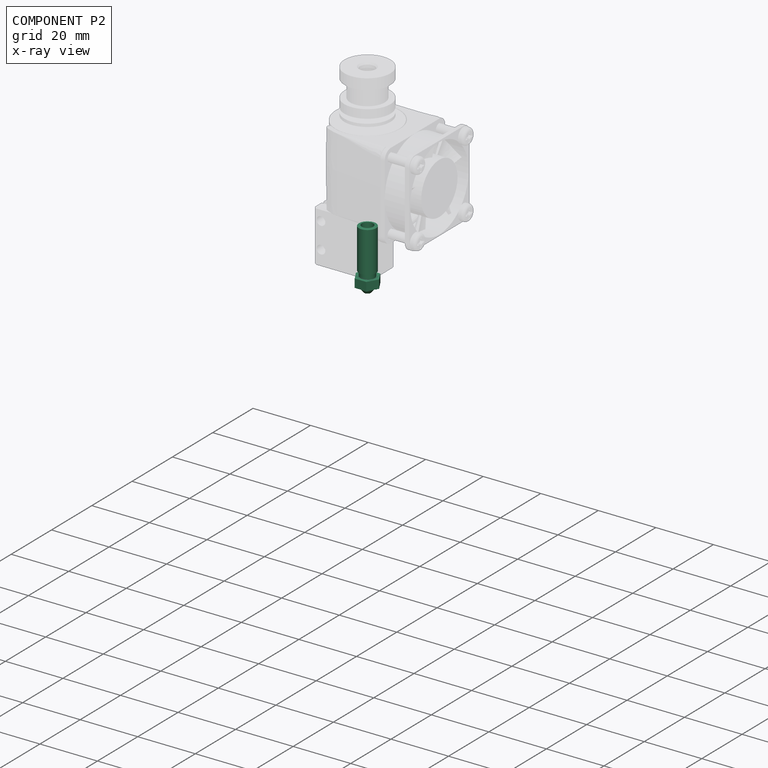
[diagram: component P2 — x-ray view]
COMPONENT P2 — recipe-attached (CADFS 00752193, mesh-verified: the recipe's output STEP matches this component's geometry to below the mesh-comparison resolution (tessellation chordal tolerance ~0.0353 mm)).
Held by: FASTENED mate "Fastened 2" to P4.
Construction recipe (FeatureScript — the CAD program that rebuilds this solid; sketch coordinates are in the units given by the * unit suffixes, e.g. mm):

FeatureScript 2656;
import(path : "onshape/std/geometry.fs", version : "2656.0");
import(path : "onshape/std/common.fs", version : "2656.0");
const mm = millimeter;
const VERTEX = EntityType.VERTEX;
const EDGE = EntityType.EDGE;
const FACE = EntityType.FACE;
const BODY = EntityType.BODY;
function v(x, y){return vector(x, y);}
function OD(order){return orderDisambiguation(order);}
function OSD(set){return originalSetDisambiguation(set);}
function TD(topology){return topologyDisambiguation(topology);}
function TDD(query){return trueDependencyDisambiguation(query);}
function sQuery(a, b, c) {return sketchEntityQuery(a, b, c);}

annotation { "Feature Type Name" : "Feature", "Feature Type Description" : "" }
export const myFeature = defineFeature(function(context is Context, id is Id, definition is map)
    precondition{}
    {
        {
            var Q0;
            Q0=qCreatedBy(makeId("Front.planeOp"),FACE);
            var sketch = newSketch(context, id + "F0", { "sketchPlane" : qUnion([Q0])});
            skCircle(sketch, "E0.cCircle", {"center": v(-22.17, -14.6) * mm, "radius": 3.5 * mm, "construction": true});
            skLineSegment(sketch, "E0.0", {"start": v(-24.2, -11.1) * mm, "end": v(-20.15, -11.1) * mm});
            skLineSegment(sketch, "E0.1", {"start": v(-20.15, -11.1) * mm, "end": v(-18.13, -14.6) * mm});
            skLineSegment(sketch, "E0.2", {"start": v(-18.13, -14.6) * mm, "end": v(-20.15, -18.1) * mm});
            skLineSegment(sketch, "E0.3", {"start": v(-20.15, -18.1) * mm, "end": v(-24.2, -18.1) * mm});
            skLineSegment(sketch, "E0.4", {"start": v(-24.2, -18.1) * mm, "end": v(-26.21, -14.6) * mm});
            skLineSegment(sketch, "E0.5", {"start": v(-26.21, -14.6) * mm, "end": v(-24.2, -11.1) * mm});
            skPoint(sketch, "E0.0.midPoint", {"position": v(-22.17, -11.1) * mm});
            skLineSegment(sketch, "E1", {"start": v(-22.17, -11.1) * mm, "end": v(-22.17, -3.32) * mm});
            skLineSegment(sketch, "E2", {"start": v(-22.17, -7.82) * mm, "end": v(-18.13, -7.82) * mm});
            skLineSegment(sketch, "E3", {"start": v(-20.15, -11.1) * mm, "end": v(-20.15, -7.82) * mm, "construction": true});
            skLineSegment(sketch, "E4", {"start": v(-18.13, -7.82) * mm, "end": v(-18.13, -4.82) * mm});
            skLineSegment(sketch, "E5", {"start": v(-18.13, -4.82) * mm, "end": v(-22.17, -4.82) * mm});
            skLineSegment(sketch, "E6", {"start": v(-20.15, -7.82) * mm, "end": v(-20.15, -4.82) * mm});
            skLineSegment(sketch, "E7", {"start": v(-19.67, -4.82) * mm, "end": v(-19.67, -3.32) * mm});
            skLineSegment(sketch, "E8", {"start": v(-19.67, -3.32) * mm, "end": v(-22.17, -3.32) * mm, "construction": true});
            skLineSegment(sketch, "E9", {"start": v(-19.67, -3.32) * mm, "end": v(-19.19, -3.13) * mm});
            skLineSegment(sketch, "E10", {"start": v(-19.19, -3.13) * mm, "end": v(-19.19, 10.98) * mm});
            skLineSegment(sketch, "E11.0", {"start": v(-19.67, 11.18) * mm, "end": v(-22.17, 11.18) * mm});
            skLineSegment(sketch, "E12", {"start": v(-22.17, 11.18) * mm, "end": v(-22.17, 17.83) * mm});
            skLineSegment(sketch, "E13", {"start": v(-22.17, -3.32) * mm, "end": v(-22.17, 11.18) * mm});
            skLineSegment(sketch, "E14", {"start": v(-22.17, 3.93) * mm, "end": v(-16.93, 3.93) * mm, "construction": true});
            skLineSegment(sketch, "E15.MirrorCS", {"start": v(-19.67, 11.18) * mm, "end": v(-19.19, 10.98) * mm});
            skLineSegment(sketch, "E16", {"start": v(-19.19, -3.13) * mm, "end": v(-22.17, -3.13) * mm, "construction": true});
            skLineSegment(sketch, "E17", {"start": v(-19.19, 10.98) * mm, "end": v(-22.17, 10.98) * mm, "construction": true});
            skLineSegment(sketch, "E18", {"start": v(-20.17, 11.18) * mm, "end": v(-20.17, -2.64) * mm});
            skLineSegment(sketch, "E19", {"start": v(-22.17, -9.8) * mm, "end": v(-20.92, -9.8) * mm});
            skLineSegment(sketch, "E20", {"start": v(-20.92, -9.8) * mm, "end": v(-19.27, -7.82) * mm});
            skLineSegment(sketch, "E21", {"start": v(-21.42, -9.8) * mm, "end": v(-21.42, -4.8) * mm});
            skLineSegment(sketch, "E22", {"start": v(-21.42, -4.8) * mm, "end": v(-20.17, -2.64) * mm});
            skSolve(sketch);
        }
        {
            var Q0;
            {var subQ0=sQuery(id+"F0.wireOp",EDGE,"E7");Q0=makeQuery(id+"F0.imprint","IMPRINT",FACE,{"disambiguationData":[TD([[makeQuery(id+"F0.imprint","IMPRINT",EDGE,{"derivedFrom":subQ0}),1.0]])]});}
            var Q1;
            {var subQ0=sQuery(id+"F0.wireOp",EDGE,"E6");Q1=makeQuery(id+"F0.imprint","IMPRINT",FACE,{"disambiguationData":[TD([[makeQuery(id+"F0.imprint","IMPRINT",EDGE,{"derivedFrom":subQ0}),1.0]])]});}
            var Q2;
            {var subQ0=sQuery(id+"F0.wireOp",EDGE,"E20");Q2=makeQuery(id+"F0.imprint","IMPRINT",FACE,{"disambiguationData":[TD([[makeQuery(id+"F0.imprint","IMPRINT",EDGE,{"derivedFrom":subQ0}),1.0]])]});}
            var Q3;
            Q3=sQuery(id+"F0.wireOp",EDGE,"E12");
            revolve(context, id + "F1", {"surfaceOperationType" : NewSurfaceOperationType.NEW, "entities" : qUnion([Q0, Q1, Q2]), "axis" : qUnion([Q3]), "revolveType" : RevolveType.FULL});
        }
        {
            var Q0;
            Q0=makeQuery(id+"F1.opRevolve","SWEPT_FACE",FACE,{"disambiguationData":[OSD([sQuery(id+"F0.wireOp",EDGE,"E5")])]});
            var sketch = newSketch(context, id + "F2", { "sketchPlane" : qUnion([Q0])});
            skCircle(sketch, "E23.0.0", {"center": v(-22.17, 0) * mm, "radius": 2.5 * mm, "construction": true});
            skCircle(sketch, "E24.cCircle", {"center": v(-22.17, 0) * mm, "radius": 3.5 * mm, "construction": true});
            skLineSegment(sketch, "E24.0", {"start": v(-24.2, 3.5) * mm, "end": v(-20.15, 3.5) * mm});
            skLineSegment(sketch, "E24.1", {"start": v(-20.15, 3.5) * mm, "end": v(-18.13, 0) * mm});
            skLineSegment(sketch, "E24.2", {"start": v(-18.13, 0) * mm, "end": v(-20.15, -3.5) * mm});
            skLineSegment(sketch, "E24.3", {"start": v(-20.15, -3.5) * mm, "end": v(-24.2, -3.5) * mm});
            skLineSegment(sketch, "E24.4", {"start": v(-24.2, -3.5) * mm, "end": v(-26.21, 0) * mm});
            skLineSegment(sketch, "E24.5", {"start": v(-26.21, 0) * mm, "end": v(-24.2, 3.5) * mm});
            skPoint(sketch, "E24.0.midPoint", {"position": v(-22.17, 3.5) * mm});
            skSolve(sketch);
        }
        {
            var Q0;
            Q0=makeQuery(id+"F2.imprint","IMPRINT",FACE,{"disambiguationData":[TD([[makeQuery(id+"F2.imprint","IMPRINT",EDGE,{"derivedFrom":sQuery(id+"F2.wireOp",EDGE,"E24.0")}),-1.0]])]});
            var Q1;
            Q1=makeQuery(id+"F2.imprint","IMPRINT",FACE,{"disambiguationData":[TD([[makeQuery(id+"F2.imprint","IMPRINT",EDGE,{"derivedFrom":makeQuery(id+"F1.opRevolve","SWEPT_EDGE",EDGE,{"disambiguationData":[OSD([sQuery(id+"F0.wireOp",EDGE,"E5"),sQuery(id+"F0.wireOp",EDGE,"E7")])]})}),1.0]])]});
            var Q2;
            Q2=makeQuery(id+"F1.opRevolve","SWEPT_FACE",FACE,{"disambiguationData":[OSD([sQuery(id+"F0.wireOp",EDGE,"E2")])]});
            extrude(context, id + "F3", {"entities" : qUnion([Q0, Q1]), "operationType" : NewBodyOperationType.ADD, "endBound" : BoundingType.UP_TO_SURFACE, "depth" : 25 * mm, "endBoundEntityFace" : qUnion([Q2]), "offsetDistance" : 25 * mm});
        }
        {
            var Q0;
            Q0=makeQuery(id+"F1.opRevolve","SWEPT_BODY",BODY,{"disambiguationData":[OSD([sQuery(id+"F0.wireOp",EDGE,"E1"),sQuery(id+"F0.wireOp",EDGE,"xcYUQjN2-Zx3a-0UNT-urBn-dGCw2vRQanaT"),sQuery(id+"F0.wireOp",EDGE,"u3ff4xL9-JtKn-PGhM-6MFM-Q4x5irorrMbF"),sQuery(id+"F0.wireOp",EDGE,"E2")])]});
            var Q1;
            Q1=sQuery(id+"F0.wireOp",VERTEX,"E19.start");
            var Q2;
            Q2=qCreatedBy(makeId("Origin.pointOp"),VERTEX);
            transform(context, id + "F4", {"entities" : qUnion([Q0]), "transformType" : TransformType.TRANSLATION_ENTITY, "oppositeDirectionEntity" : false, "transformLine" : qUnion([Q1, Q2]), "makeCopy" : false});
        }
    });
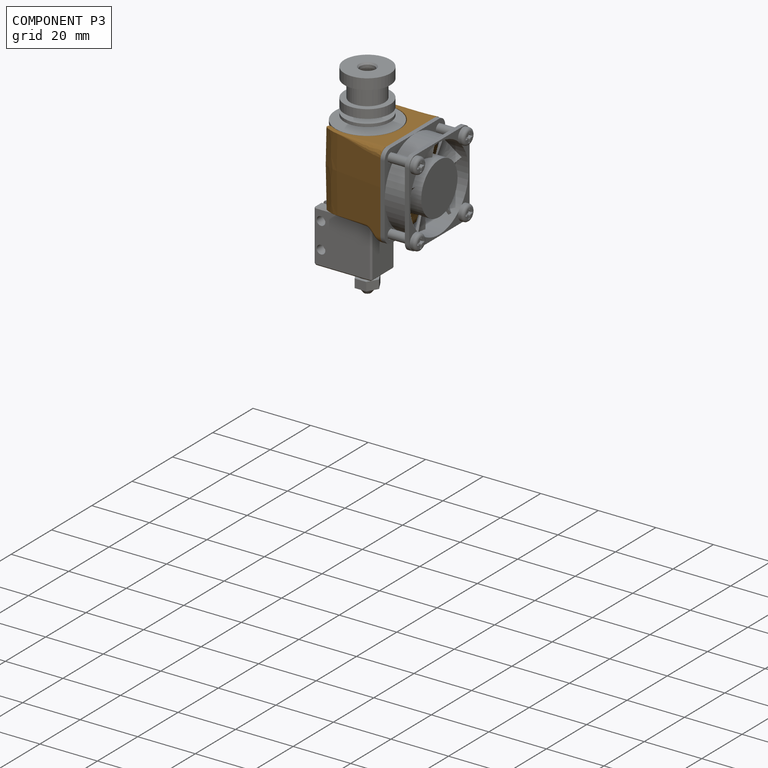
[diagram: component P3 — assembled]
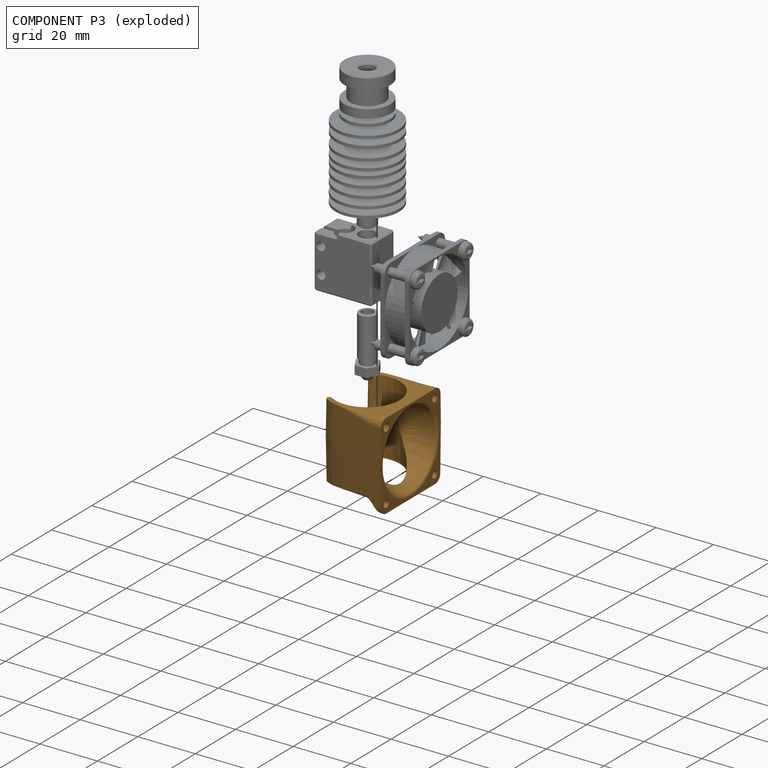
[diagram: component P3 — exploded]
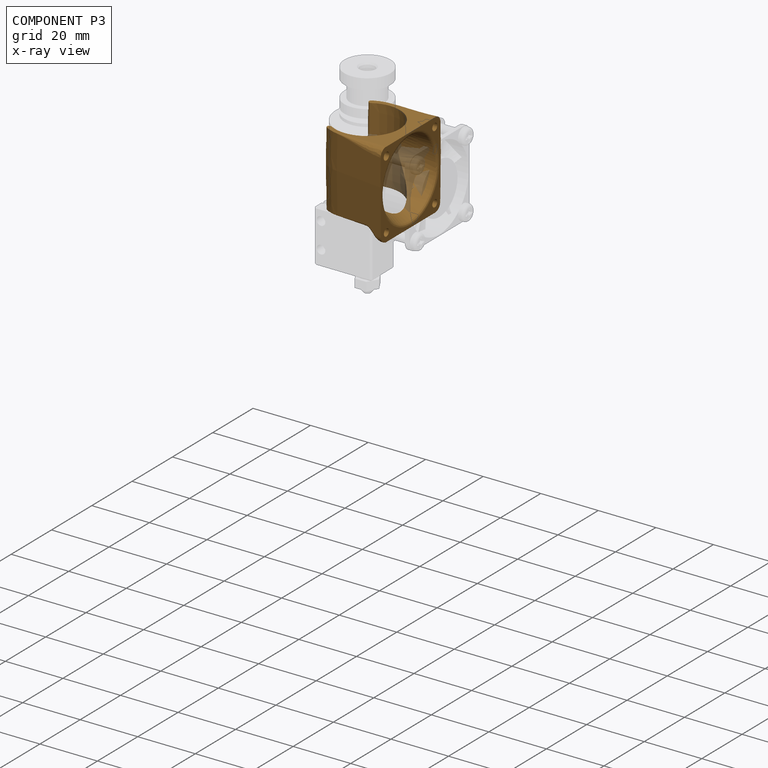
[diagram: component P3 — x-ray view]
COMPONENT P3 — geometry summary (no construction recipe available for this part):
  bounding box: 30.3 x 30.3 x 22.6 mm
  B-rep topology: 1 solid, 100 faces, 529 edges
  volume: 3879 mm^3 (19% of its bounding box)
  symmetry: mirror-symmetric across its y mid-plane
Held by: FASTENED mate "Fastened 4" to P1; FASTENED mate "Fastened 3" to P4.
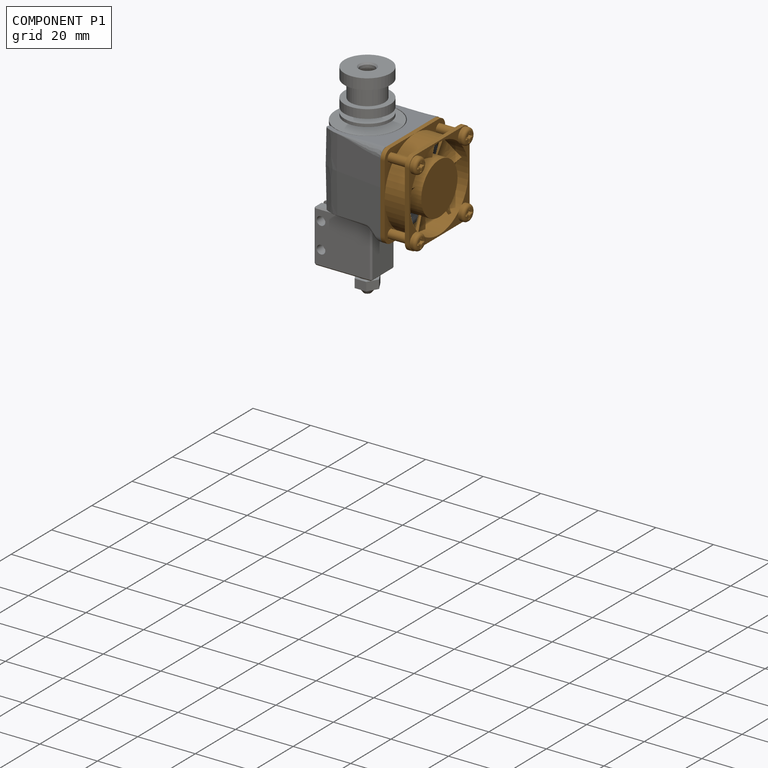
[diagram: component P1 — assembled]
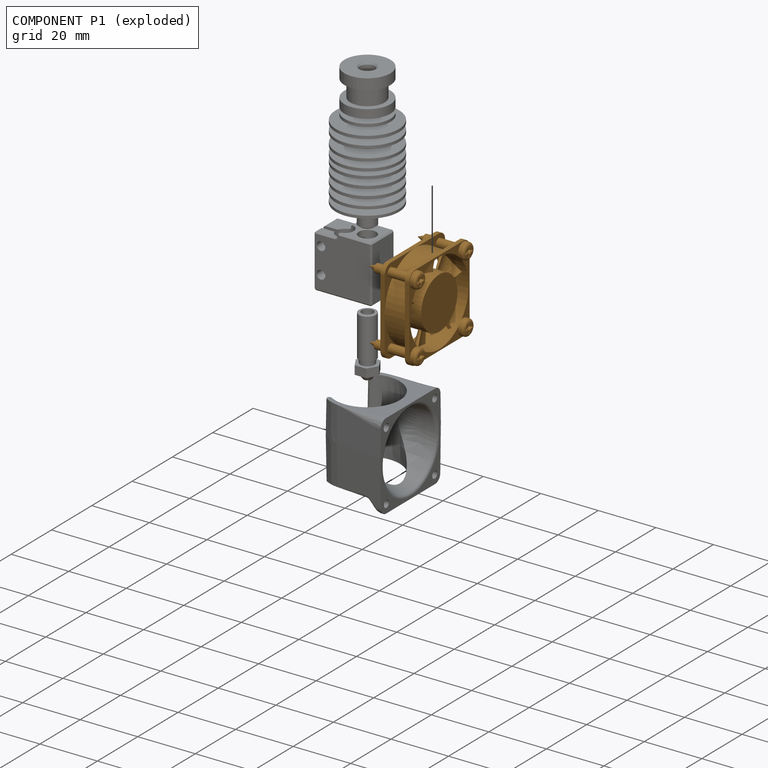
[diagram: component P1 — exploded]
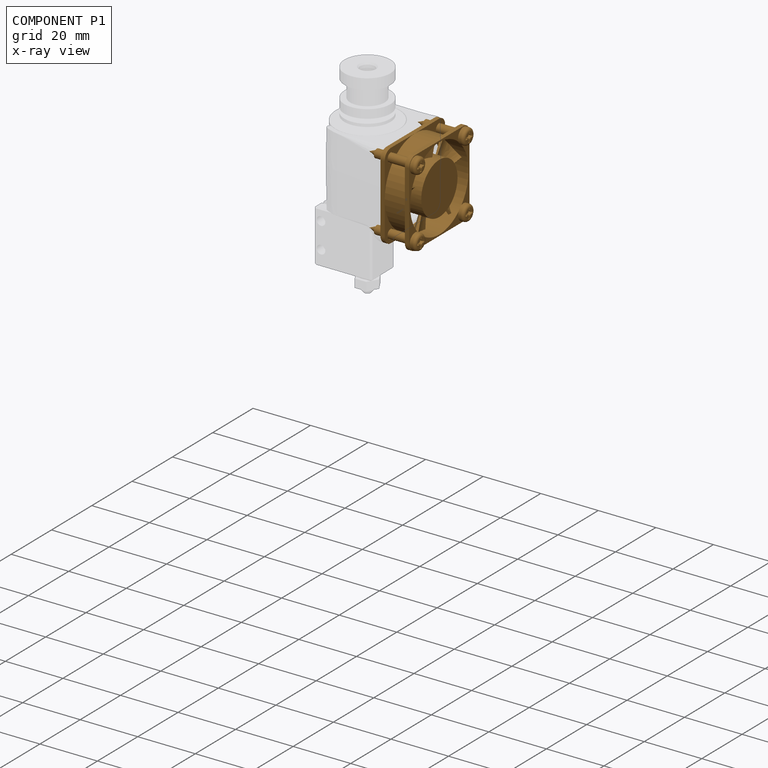
[diagram: component P1 — x-ray view]
COMPONENT P1 — geometry summary (no construction recipe available for this part):
  bounding box: 30.1 x 30.1 x 18.1 mm
  B-rep topology: 1 solid, 184 faces, 1012 edges
  volume: 4208 mm^3 (26% of its bounding box)
Held by: FASTENED mate "Fastened 4" to P3.
PROVENANCE & LICENSES
Assembly (occurrences, transforms, mates, per-part STEP geometry): AutoMate dataset, Zenodo record 7776208, CC0.
Construction recipes: CADFS (HuggingFace VladPyatov/CADFS, CC-BY-4.0, layered over the ABC dataset), FeatureScript reconstruction programs keyed by ABC model id.
Join: ABC meta listings map ABC model id -> Onshape documentId; within a shared document, parts are matched by geometric signature (bounding-box dims + volume at 0.1% relative tolerance, exact B-rep face/solid counts).
Verification: 3 of this assembly's 5 components carry a recipe attachment, and every attachment is mesh-verified: the CADFS STEP and the AutoMate member STEP were compared as meshes in their shared local frame (symmetric sampled-point-to-mesh distance); worst across the 3 attachments: below the mesh-comparison resolution (tessellation chordal tolerance ~0.0881 mm) on a 59 mm part.
Renders: orthographic iso camera (az 35 / el 25); the floor grid conveys scale (grid pitch printed in each image; no ruler). In the exploded view each component is displaced by its stored offset vector: the offsets alone carry the explosion direction (mate normal/axis signs are not orientation cues and do not encode it), and separation distances are assigned per mate-chain, not proportionally to assembly-order depth.
